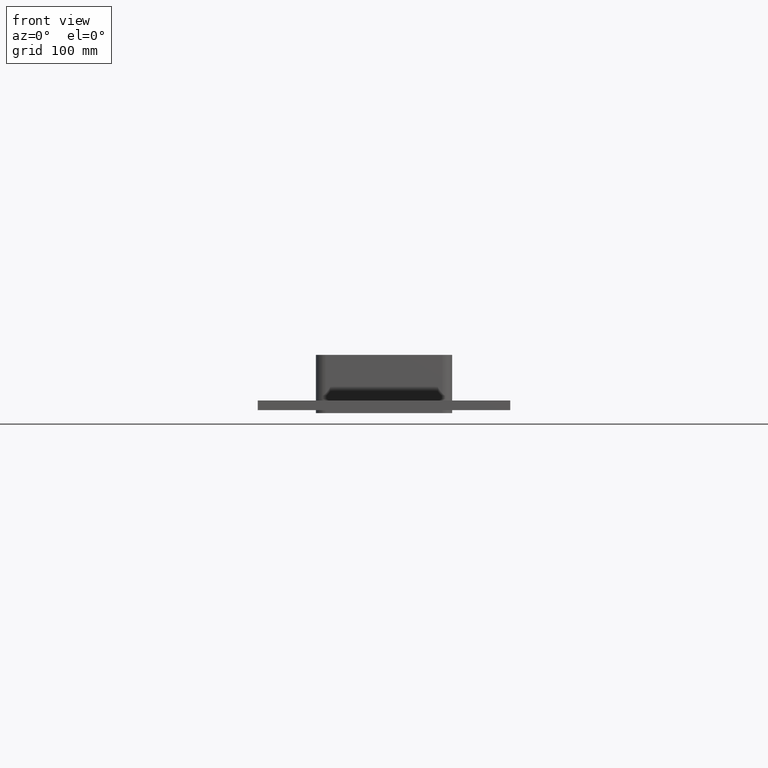
[diagram: clean part render]
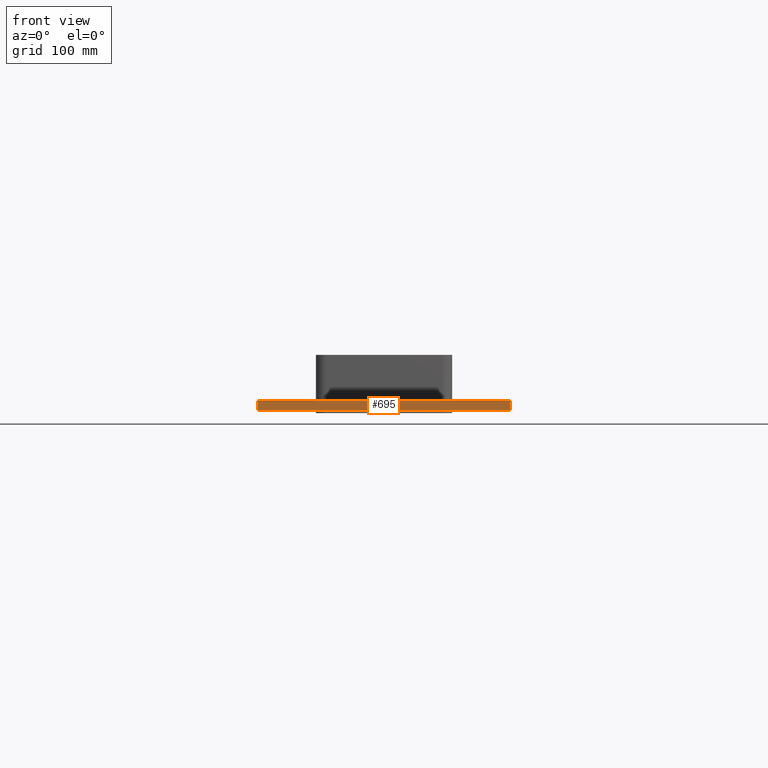
[diagram: same view with one face highlighted and labeled with its STEP entity id]
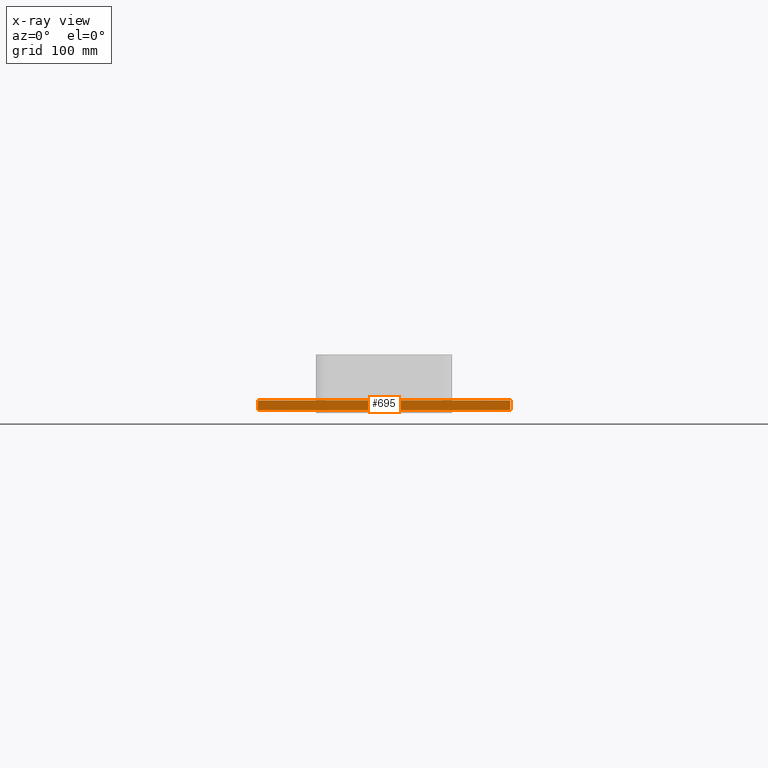
[diagram: x-ray of the same camera — body ghosted, the highlighted face saturated]
A machine part, front view. The second image highlights one B-rep face of the part: STEP entity #695.
The next image is the same camera in x-ray: the body ghosted, the highlighted face saturated — about 0% of this face is hidden behind the body in this view.
In plain terms, the highlighted planar face has unit normal (0, -1, 0).
Its self-contained STEP definition (entity closure, byte-faithful):
#577=CARTESIAN_POINT('',(-130.24999999999991,-353.00000000000006,-27.0));
#578=VERTEX_POINT('',#577);
#587=CARTESIAN_POINT('',(-130.24999999999991,-353.00000000000006,-17.0));
#588=VERTEX_POINT('',#587);
#589=CARTESIAN_POINT('',(-130.24999999999991,-353.00000000000006,-27.0));
#590=DIRECTION('',(0.0,0.0,1.0));
#591=VECTOR('',#590,10.0);
#592=LINE('',#589,#591);
#593=EDGE_CURVE('',#578,#588,#592,.T.);
#648=CARTESIAN_POINT('',(130.25000000000006,-353.00000000000006,-27.0));
#649=VERTEX_POINT('',#648);
#657=CARTESIAN_POINT('',(130.25000000000006,-353.00000000000006,-17.0));
#658=VERTEX_POINT('',#657);
#665=CARTESIAN_POINT('',(130.25000000000006,-353.00000000000006,-27.0));
#666=DIRECTION('',(0.0,0.0,1.0));
#667=VECTOR('',#666,10.0);
#668=LINE('',#665,#667);
#669=EDGE_CURVE('',#649,#658,#668,.T.);
#674=CARTESIAN_POINT('',(-130.24999999999991,-353.00000000000006,-27.0));
#675=DIRECTION('',(0.0,-1.0,0.0));
#676=DIRECTION('',(1.0,0.0,0.0));
#677=AXIS2_PLACEMENT_3D('',#674,#675,#676);
#678=PLANE('',#677);
#679=CARTESIAN_POINT('',(130.25000000000006,-353.00000000000006,-27.0));
#680=DIRECTION('',(-1.0,0.0,0.0));
#681=VECTOR('',#680,260.5);
#682=LINE('',#679,#681);
#683=EDGE_CURVE('',#649,#578,#682,.T.);
#684=ORIENTED_EDGE('',*,*,#683,.F.);
#685=ORIENTED_EDGE('',*,*,#669,.T.);
#686=CARTESIAN_POINT('',(-130.24999999999994,-353.00000000000006,-17.0));
#687=DIRECTION('',(1.0,0.0,0.0));
#688=VECTOR('',#687,260.5);
#689=LINE('',#686,#688);
#690=EDGE_CURVE('',#588,#658,#689,.T.);
#691=ORIENTED_EDGE('',*,*,#690,.F.);
#692=ORIENTED_EDGE('',*,*,#593,.F.);
#693=EDGE_LOOP('',(#684,#685,#691,#692));
#694=FACE_OUTER_BOUND('',#693,.T.);
#695=ADVANCED_FACE('',(#694),#678,.T.);